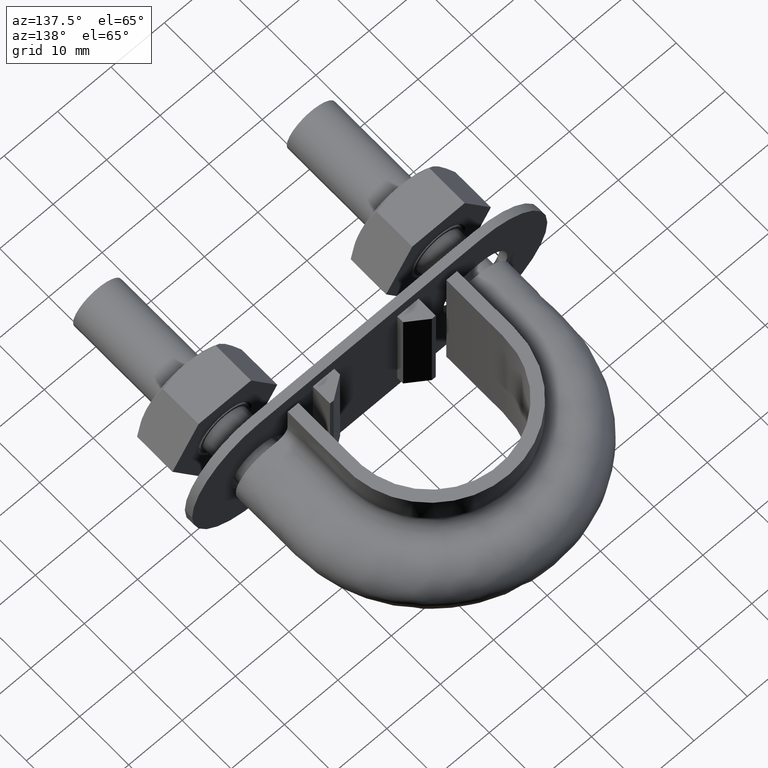
[diagram: clean part render]
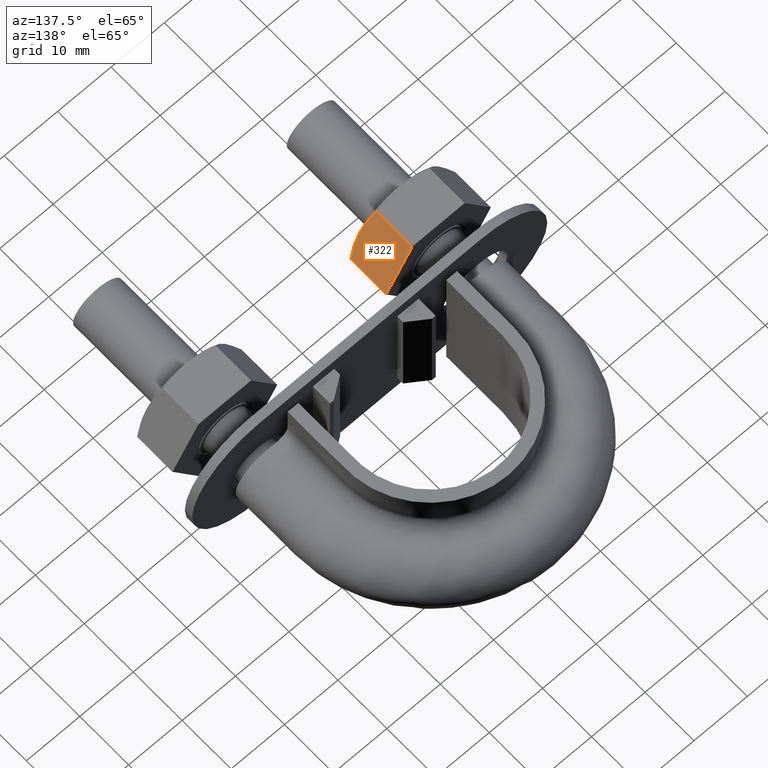
[diagram: same view with one face highlighted and labeled with its STEP entity id]
A machine part, auxiliary view. The second image highlights one B-rep face of the part: STEP entity #322.
In plain terms, the highlighted planar face has unit normal (-0.866, 0, -0.5).
Its self-contained STEP definition (entity closure, byte-faithful):
#322 = ADVANCED_FACE( '', ( #499 ), #500, .F. );
#499 = FACE_OUTER_BOUND( '', #1606, .T. );
#500 = PLANE( '', #1607 );
#1606 = EDGE_LOOP( '', ( #2122, #2123, #2124, #2125, #2126 ) );
#1607 = AXIS2_PLACEMENT_3D( '', #2127, #2128, #2129 );
#2122 = ORIENTED_EDGE( '', *, *, #2564, .F. );
#2123 = ORIENTED_EDGE( '', *, *, #2571, .F. );
#2124 = ORIENTED_EDGE( '', *, *, #2572, .F. );
#2125 = ORIENTED_EDGE( '', *, *, #2573, .F. );
#2126 = ORIENTED_EDGE( '', *, *, #2574, .F. );
#2127 = CARTESIAN_POINT( '', ( -15.0925227118876, 26.0000000000000, 8.49999999999887 ) );
#2128 = DIRECTION( '', ( -0.866025403784493, 4.54831243663986E-016, -0.499999999999906 ) );
#2129 = DIRECTION( '', ( -0.499999999999906, 1.91894260162125E-016, 0.866025403784493 ) );
#2564 = EDGE_CURVE( '', #2858, #2854, #2860, .T. );
#2571 = EDGE_CURVE( '', #2872, #2858, #2873, .T. );
#2572 = EDGE_CURVE( '', #2874, #2872, #2875, .F. );
#2573 = EDGE_CURVE( '', #2876, #2874, #2877, .T. );
#2574 = EDGE_CURVE( '', #2854, #2876, #2878, .T. );
#2854 = VERTEX_POINT( '', #3474 );
#2858 = VERTEX_POINT( '', #3483 );
#2860 = B_SPLINE_CURVE_WITH_KNOTS( '', 3, ( #3485, #3486, #3487, #3488, #3489, #3490, #3491, #3492 ), .UNSPECIFIED., .F., .F., ( 4, 2, 2, 4 ), ( 0.00493506423428005, 0.00616384870526204, 0.00739263317624403, 0.00985020211820800 ), .UNSPECIFIED. );
#2872 = VERTEX_POINT( '', #3504 );
#2873 = B_SPLINE_CURVE_WITH_KNOTS( '', 3, ( #3505, #3506, #3507, #3508, #3509, #3510 ), .UNSPECIFIED., .F., .F., ( 4, 2, 4 ), ( 4.83064900408918E-007, 0.00246777364959023, 0.00493506423428005 ), .UNSPECIFIED. );
#2874 = VERTEX_POINT( '', #3511 );
#2875 = LINE( '', #3512, #3513 );
#2876 = VERTEX_POINT( '', #3514 );
#2877 = LINE( '', #3515, #3516 );
#2878 = LINE( '', #3517, #3518 );
#3474 = CARTESIAN_POINT( '', ( -15.0775337474831, 18.7505553499486, 8.47403835209748 ) );
#3483 = CARTESIAN_POINT( '', ( -12.6387840678334, 18.0000000000023, 4.24999999999830 ) );
#3485 = CARTESIAN_POINT( '', ( -12.6387840678324, 18.0000000000029, 4.24999999999897 ) );
#3486 = CARTESIAN_POINT( '', ( -12.8456385394390, 18.0000000000029, 4.60828245459456 ) );
#3487 = CARTESIAN_POINT( '', ( -13.0535275305459, 18.0177112081792, 4.96835674952605 ) );
#3488 = CARTESIAN_POINT( '', ( -13.4647840563432, 18.0863021936241, 5.68067394715144 ) );
#3489 = CARTESIAN_POINT( '', ( -13.6690452347235, 18.1371116504223, 6.03446468612010 ) );
#3490 = CARTESIAN_POINT( '', ( -14.2782186306654, 18.3331494013941, 7.08958395851089 ) );
#3491 = CARTESIAN_POINT( '', ( -14.6795341003763, 18.5218253127383, 7.78468274191388 ) );
#3492 = CARTESIAN_POINT( '', ( -15.0775337474831, 18.7505553499494, 8.47403835209737 ) );
#3504 = CARTESIAN_POINT( '', ( -10.2000343881836, 18.7505553499486, 0.0259616478991117 ) );
#3505 = CARTESIAN_POINT( '', ( -10.2000343881816, 18.7505553499494, 0.0259616479004124 ) );
#3506 = CARTESIAN_POINT( '', ( -10.5990867524623, 18.5212203171306, 0.717140617715338 ) );
#3507 = CARTESIAN_POINT( '', ( -11.0010212207042, 18.3324525365469, 1.41331153802355 ) );
#3508 = CARTESIAN_POINT( '', ( -11.8131667591046, 18.0714148540614, 2.81998887367387 ) );
#3509 = CARTESIAN_POINT( '', ( -12.2234385762116, 18.0000000000028, 3.53060050581688 ) );
#3510 = CARTESIAN_POINT( '', ( -12.6387840678324, 18.0000000000029, 4.24999999999897 ) );
#3511 = CARTESIAN_POINT( '', ( -10.2000343881836, 26.0000000000000, 0.0259616478991130 ) );
#3512 = CARTESIAN_POINT( '', ( -10.2000343881836, 26.0000000000000, 0.0259616478991121 ) );
#3513 = VECTOR( '', #3979, 999.999999999905 );
#3514 = CARTESIAN_POINT( '', ( -15.0775337474831, 26.0000000000000, 8.47403835209748 ) );
#3515 = CARTESIAN_POINT( '', ( -15.0887840678317, 26.0000000000000, 8.49352447854261 ) );
#3516 = VECTOR( '', #3980, 1000.00000000012 );
#3517 = CARTESIAN_POINT( '', ( -15.0775337474831, 26.0000000000000, 8.47403835209748 ) );
#3518 = VECTOR( '', #3981, 999.999999999905 );
#3979 = DIRECTION( '', ( 4.89842541528951E-016, 1.00000000000000, 6.12303176911189E-017 ) );
#3980 = DIRECTION( '', ( 0.499999999999693, -1.91894260162013E-016, -0.866025403784616 ) );
#3981 = DIRECTION( '', ( 4.89842541528951E-016, 1.00000000000000, 6.12303176911189E-017 ) );